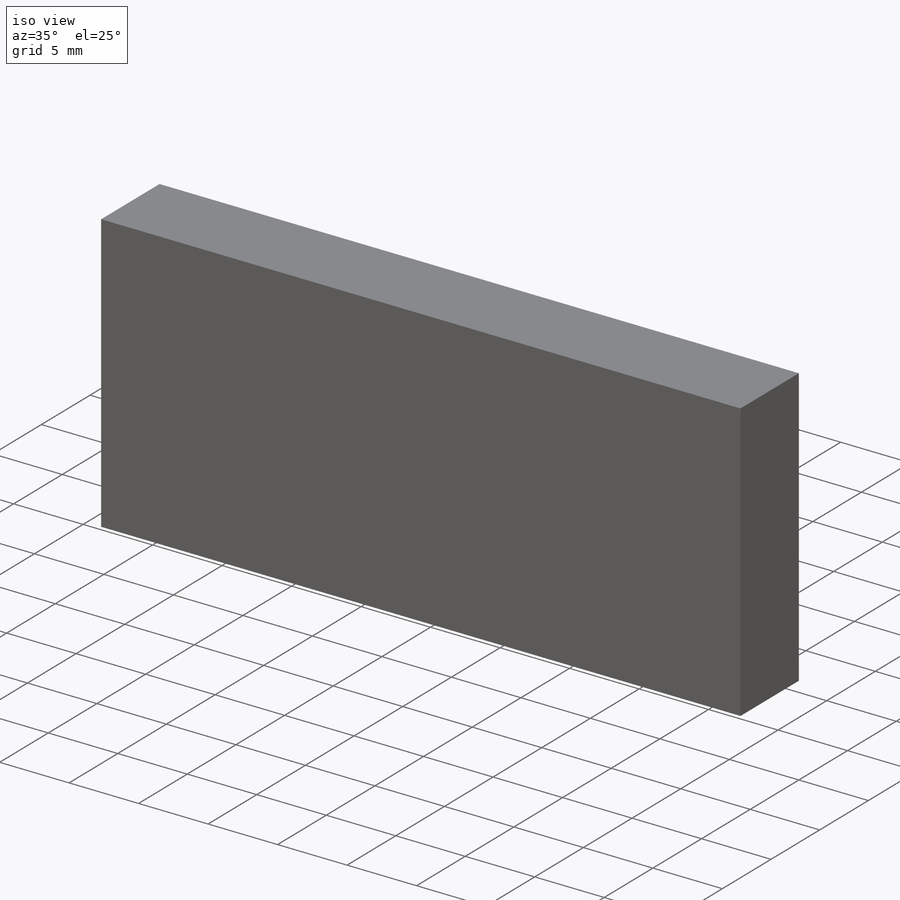
[diagram: iso view]
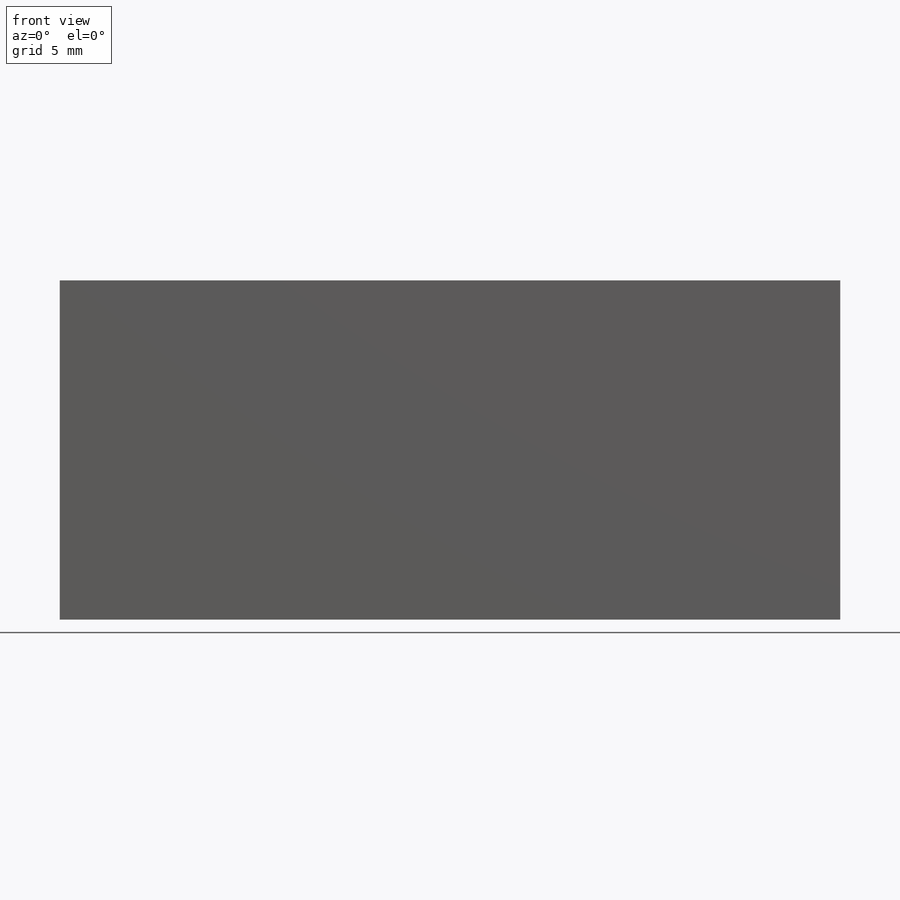
[diagram: front view]
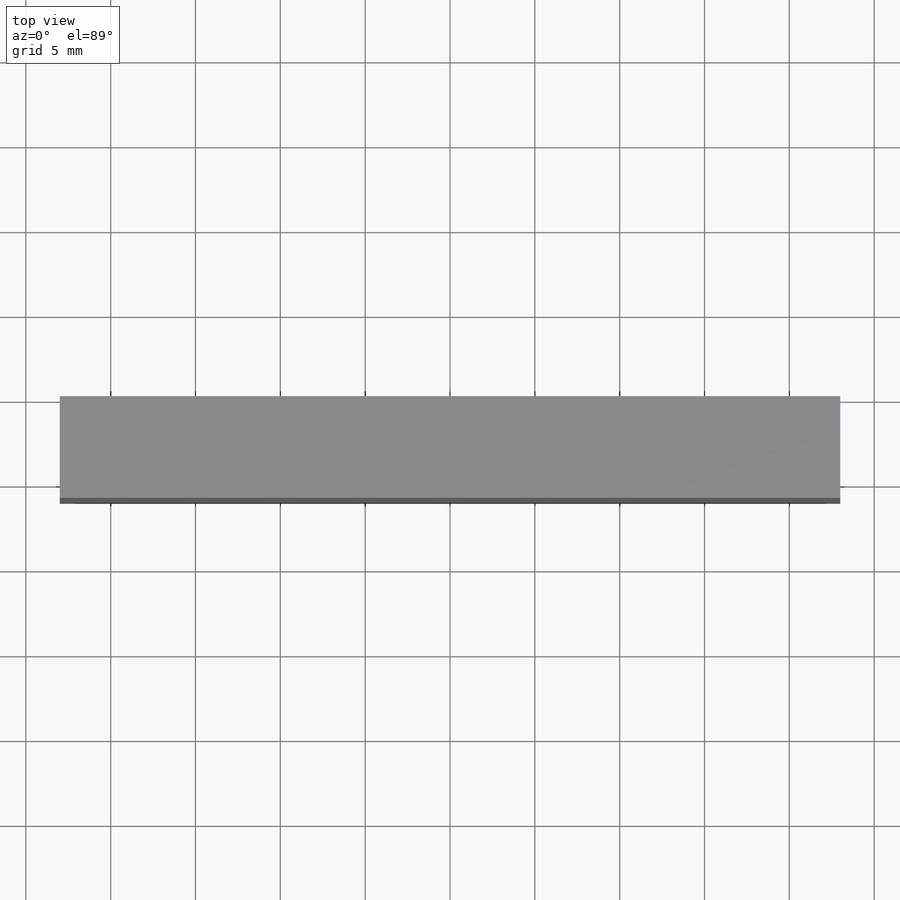
[diagram: top view]
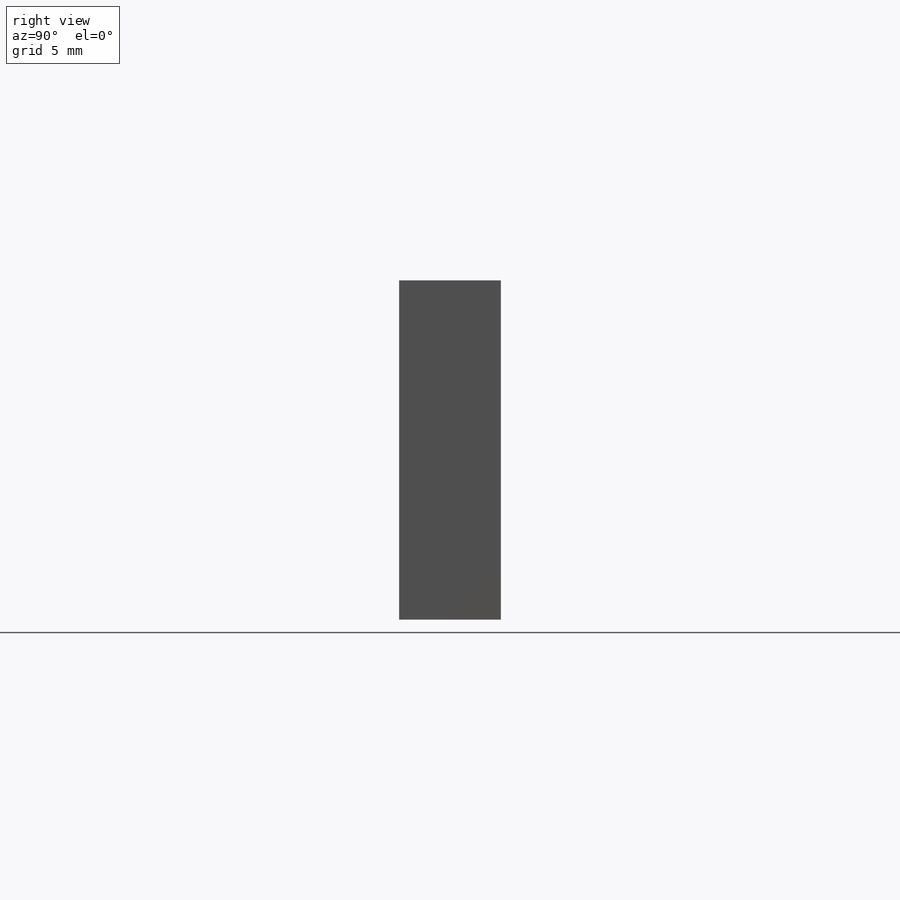
[diagram: right view]
SOLIDWORKS PART (.sldprt)
format: sldprt  version: not decoded by parser v0  size: 190,464 bytes
history: native  units: mm
features: sketch x3, cut_extrude x2, material x1, extrude x1 (+13 scaffold rows collapsed)
feature tree (20):
  scaffold x13  (default folders/planes/origin — collapsed)
  material  "Material <not specified>"
  sketch  "Sketch2"  dims[D1=10.0mm D2=23.0mm]
  extrude  "Boss-Extrude1"  Depth=6mm
  sketch  "Sketch3"  dims[c1.D1=3.5mm c1.D2=3.5mm c1.D3=4.0mm c1.D5=14.0mm c2.D3=16.0mm c2.D4=16.0mm c2.D6=16.0mm c2.D7=~12.581146mm c3.D6=14.0mm c3.D7=14.0mm c3.D8=14.0mm c3.D9=14.0mm c3.D10=7.0mm c3.D11=7.0mm]
  cut_extrude  "Cut-Extrude2"  Depth=2mm
  sketch  "Sketch5"  dims[D1=3.5mm D2=4.5mm D3=4.5mm D4=8.0mm D5=8.0mm D6=11.5mm D7=11.5mm]
  cut_extrude  "Cut-Extrude3"  [1 undecoded]
decode coverage: 5 of 6 modeling features carry decoded parameters
note: ~ marks probable driven/reference dimensions
note: 1 parameter value undecoded
note: suppression state not decoded; provenance and decode notes live in map.json
